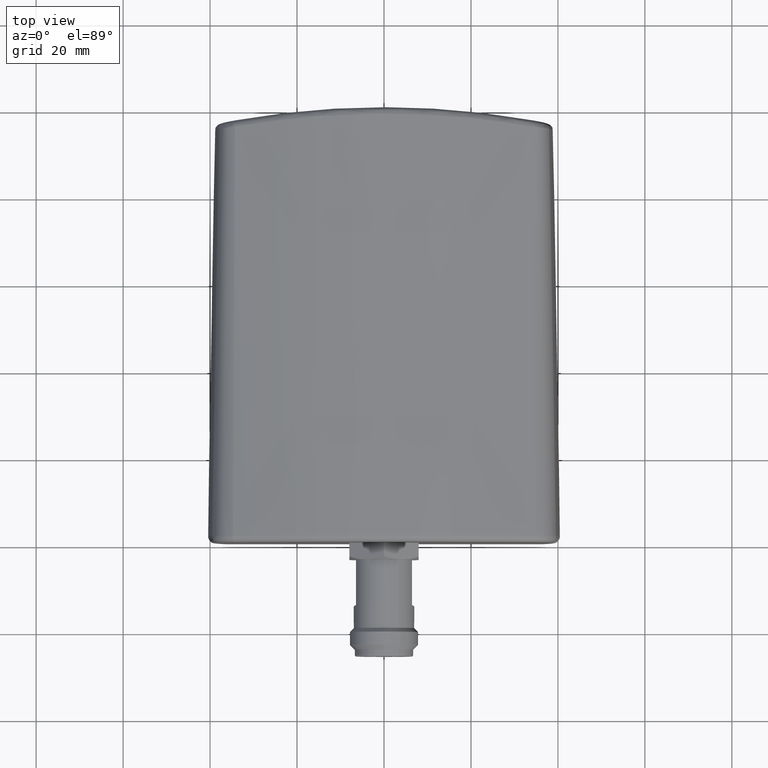
[diagram: clean part render]
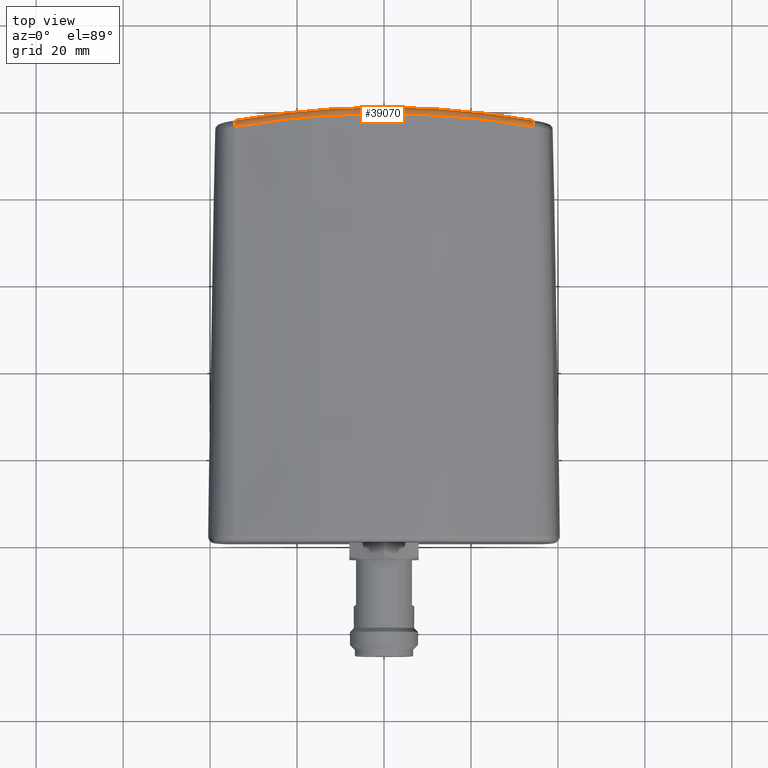
[diagram: same view with one face highlighted and labeled with its STEP entity id]
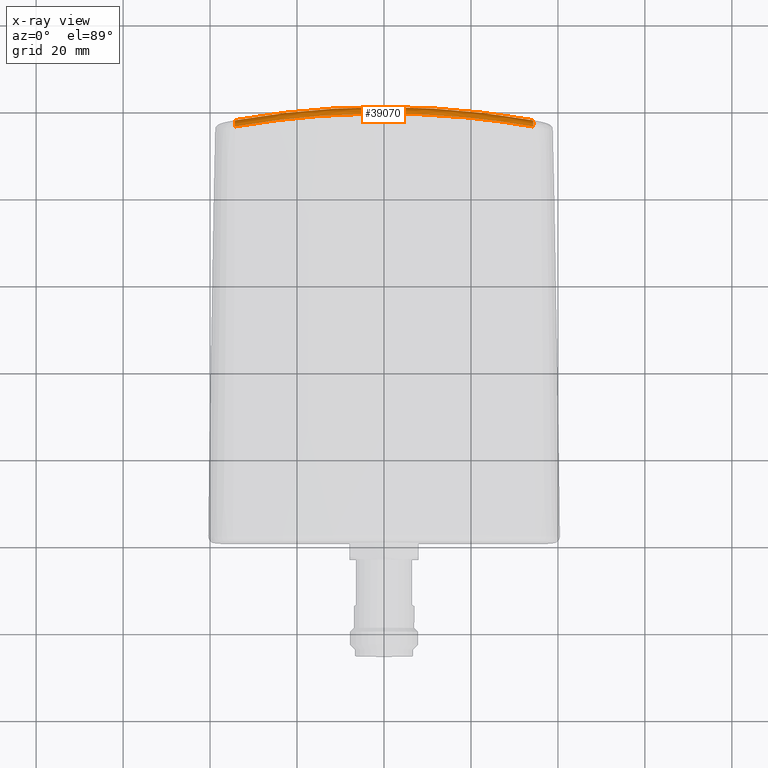
[diagram: x-ray of the same camera — body ghosted, the highlighted face saturated]
A machine part, top view. The second image highlights one B-rep face of the part: STEP entity #39070.
The next image is the same camera in x-ray: the body ghosted, the highlighted face saturated — about 0% of this face is hidden behind the body in this view.
In plain terms, the highlighted face is a freeform B-spline surface patch.
Its self-contained STEP definition (entity closure, byte-faithful):
#15950=CARTESIAN_POINT('',(95.6213285739118,-34.2670629518008,
28.2970659922435));
#15960=VERTEX_POINT('',#15950);
#17270=CARTESIAN_POINT('',(95.6213386402798,34.2670629009296,
28.2970658240596));
#17280=VERTEX_POINT('',#17270);
#17740=CARTESIAN_POINT('',(95.6213285739118,-34.2670629518008,
28.2970659922435));
#17750=CARTESIAN_POINT('',(95.6323923032891,-34.2023015602017,
28.3164515155651));
#17760=CARTESIAN_POINT('',(95.6431231126834,-34.1375354914949,
28.3356298905804));
#17770=CARTESIAN_POINT('',(96.152917839586,-31.1360014853794,
29.2285982923325));
#17780=CARTESIAN_POINT('',(96.5928929996587,-28.1559332832241,
29.9922163244447));
#17790=CARTESIAN_POINT('',(97.9904358270685,-16.9245295156566,
32.40880340826));
#17800=CARTESIAN_POINT('',(98.5248613024818,-8.49530067195654,
33.3128241628869));
#17810=CARTESIAN_POINT('',(98.5274910177388,8.43213096162668,
33.3173042099018));
#17820=CARTESIAN_POINT('',(97.995669069494,16.8621034835572,
32.4177206414532));
#17830=CARTESIAN_POINT('',(96.5988287209731,28.1156591749,
30.0025282991409));
#17840=CARTESIAN_POINT('',(96.1562828474986,31.1161492318504,
29.2345021272602));
#17850=CARTESIAN_POINT('',(95.6431205442519,34.1375254317442,
28.3356308700154));
#17860=CARTESIAN_POINT('',(95.6324021743874,34.2023023260774,
28.3164511039146));
#17870=CARTESIAN_POINT('',(95.6213386402798,34.2670629009296,
28.2970658240596));
#17880=B_SPLINE_CURVE_WITH_KNOTS('',3,(#17740,#17750,#17760,#17770,
#17780,#17790,#17800,#17810,#17820,#17830,#17840,#17850,#17860,#17870),
.UNSPECIFIED.,.F.,.F.,(4,2,2,2,2,2,4),(0.,0.205354024727553,
9.49666785060127,34.7931401177727,60.0899082164268,69.4440688118672,
69.6493925526111),.UNSPECIFIED.);
#17890=EDGE_CURVE('',#15960,#17280,#17880,.T.);
#37140=CARTESIAN_POINT('',(97.0735177280249,-34.0885407476158,
26.861515279655));
#37150=VERTEX_POINT('',#37140);
#37180=CARTESIAN_POINT('',(97.0735177280249,-34.0885407476158,
26.861515279655));
#37190=CARTESIAN_POINT('',(97.0846959125693,-34.0239171497242,
26.8807120518109));
#37200=CARTESIAN_POINT('',(97.0952928137262,-33.9590559532503,
26.8998261270411));
#37210=CARTESIAN_POINT('',(97.6088881777369,-30.9733278256887,
27.7812800508277));
#37220=CARTESIAN_POINT('',(98.0521250615587,-28.0090373904329,
28.5350152818514));
#37230=CARTESIAN_POINT('',(99.4601546507344,-16.8366956868348,
30.9205490681536));
#37240=CARTESIAN_POINT('',(99.9986728050146,-8.45057247485575,
31.8130814704817));
#37250=CARTESIAN_POINT('',(100.001322258873,8.38773220159363,
31.8175039237177));
#37260=CARTESIAN_POINT('',(99.465427574364,16.7745950104958,
30.9293523458537));
#37270=CARTESIAN_POINT('',(98.0581057214153,27.9689717734295,
28.5451954468244));
#37280=CARTESIAN_POINT('',(97.6122792526062,30.9535754271312,
27.7871094827471));
#37290=CARTESIAN_POINT('',(97.0952908964611,33.95904260953,
26.8998282592283));
#37300=CARTESIAN_POINT('',(97.084703111916,34.0238754104534,
26.8807182217547));
#37310=CARTESIAN_POINT('',(97.07352820029,34.0884802050417,
26.86152703681));
#37320=B_SPLINE_CURVE_WITH_KNOTS('',3,(#37180,#37190,#37200,#37210,
#37220,#37230,#37240,#37250,#37260,#37270,#37280,#37290,#37300,#37310),
.UNSPECIFIED.,.F.,.F.,(4,2,2,2,2,2,4),(0.,0.205354024727553,
9.49666785060127,34.7931401177727,60.0899082164268,69.4440688118672,
69.6493925526111),.UNSPECIFIED.);
#37330=CARTESIAN_POINT('',(97.07352820029,34.0884802050417,
26.86152703681));
#37340=VERTEX_POINT('',#37330);
#37350=EDGE_CURVE('',#37150,#37340,#37320,.T.);
#38200=CARTESIAN_POINT('',(95.6213386402799,34.2670629009311,
28.2970658240647));
#38210=CARTESIAN_POINT('',(96.4432797039842,34.3920648061494,
28.2442697202946));
#38220=CARTESIAN_POINT('',(97.0335837249357,34.3194086196509,
27.6609496555165));
#38230=CARTESIAN_POINT('',(97.07352820029,34.0884802050417,
26.86152703681));
#38240=(BOUNDED_CURVE() B_SPLINE_CURVE(3,(#38200,#38210,#38220,#38230),
.UNSPECIFIED.,.F.,.F.) B_SPLINE_CURVE_WITH_KNOTS((4,4),(0.,1.),
.UNSPECIFIED.) CURVE() GEOMETRIC_REPRESENTATION_ITEM() 
RATIONAL_B_SPLINE_CURVE((1.,0.820166665715352,0.820166665715352,1.)) 
REPRESENTATION_ITEM(''));
#38250=EDGE_CURVE('',#17280,#37340,#38240,.T.);
#38380=CARTESIAN_POINT('',(95.6213285739118,-34.2670629518008,
28.2970659922435));
#38390=CARTESIAN_POINT('',(95.6323923032891,-34.2023015602017,
28.3164515155651));
#38400=CARTESIAN_POINT('',(95.6431231126834,-34.1375354914949,
28.3356298905804));
#38410=CARTESIAN_POINT('',(96.152917839586,-31.1360014853794,
29.2285982923325));
#38420=CARTESIAN_POINT('',(96.5928929996587,-28.1559332832241,
29.9922163244447));
#38430=CARTESIAN_POINT('',(97.9904358270685,-16.9245295156566,
32.40880340826));
#38440=CARTESIAN_POINT('',(98.5248613024818,-8.49530067195654,
33.3128241628869));
#38450=CARTESIAN_POINT('',(98.5274910177388,8.43213096162668,
33.3173042099018));
#38460=CARTESIAN_POINT('',(97.995669069494,16.8621034835572,
32.4177206414532));
#38470=CARTESIAN_POINT('',(96.5988287209731,28.1156591749,
30.0025282991409));
#38480=CARTESIAN_POINT('',(96.1562828474986,31.1161492318504,
29.2345021272602));
#38490=CARTESIAN_POINT('',(95.6431205442519,34.1375254317442,
28.3356308700154));
#38500=CARTESIAN_POINT('',(95.6324021743874,34.2023023260774,
28.3164511039146));
#38510=CARTESIAN_POINT('',(95.6213386402798,34.2670629009296,
28.2970658240596));
#38520=CARTESIAN_POINT('',(96.4433689809165,-34.3914919962119,
28.2444413403551));
#38530=CARTESIAN_POINT('',(96.4546432974759,-34.326287337201,
28.2640430412846));
#38540=CARTESIAN_POINT('',(96.465576914908,-34.2609955526159,
28.2836155152455));
#38550=CARTESIAN_POINT('',(96.982715956335,-31.2519173887651,
29.1823434042826));
#38560=CARTESIAN_POINT('',(97.4291199437597,-28.2636784498166,
29.9510881014032));
#38570=CARTESIAN_POINT('',(98.8478425151963,-16.9970087225032,
32.3852812303642));
#38580=CARTESIAN_POINT('',(99.3913181932417,-8.5282784276809,
33.297690323763));
#38590=CARTESIAN_POINT('',(99.393989569213,8.46484445715067,
33.302206718677));
#38600=CARTESIAN_POINT('',(98.8531601553345,16.9343436681771,
32.3942733869311));
#38610=CARTESIAN_POINT('',(97.4351460219132,28.223274070481,
29.9614757226498));
#38620=CARTESIAN_POINT('',(96.9861332088121,31.2319961774056,
29.18829197766));
#38630=CARTESIAN_POINT('',(96.4655776623265,34.2609677801899,
28.28362227277));
#38640=CARTESIAN_POINT('',(96.4545927456113,34.3266371306376,
28.2639385242287));
#38650=CARTESIAN_POINT('',(96.4432797039827,34.3920648061476,
28.2442697202897));
#38660=CARTESIAN_POINT('',(97.0335592023591,-34.3195499678251,
27.6609153223325));
#38670=CARTESIAN_POINT('',(97.0449660410369,-34.2540799910422,
27.6805015729599));
#38680=CARTESIAN_POINT('',(97.0559194101401,-34.188193978942,
27.7000285593271));
#38690=CARTESIAN_POINT('',(97.5759910663856,-31.1853701719575,
28.5926964392486));
#38700=CARTESIAN_POINT('',(98.0249098501721,-28.2035669578993,
29.3561726192605));
#38710=CARTESIAN_POINT('',(99.4518307699194,-16.961157069143,
31.7737156583409));
#38720=CARTESIAN_POINT('',(99.998664604182,-8.50951362093059,
32.6797750849298));
#38730=CARTESIAN_POINT('',(100.001351835556,8.44621543179987,
32.6842596704488));
#38740=CARTESIAN_POINT('',(99.4571803985601,16.8986249766299,
31.7826452861239));
#38750=CARTESIAN_POINT('',(98.0309711105516,28.1632449360076,
29.3664898308489));
#38760=CARTESIAN_POINT('',(97.5794287859558,31.1654868314711,
28.5986055748378));
#38770=CARTESIAN_POINT('',(97.0559197696858,34.1881694969927,
27.7000342015547));
#38780=CARTESIAN_POINT('',(97.0449827216901,34.2539836082711,
27.6805224506394));
#38790=CARTESIAN_POINT('',(97.0335837249357,34.3194086196505,
27.6609496555151));
#38800=CARTESIAN_POINT('',(97.0735177280249,-34.0885407476158,
26.861515279655));
#38810=CARTESIAN_POINT('',(97.0846959125693,-34.0239171497242,
26.8807120518109));
#38820=CARTESIAN_POINT('',(97.0952928137262,-33.9590559532503,
26.8998261270411));
#38830=CARTESIAN_POINT('',(97.6088881777369,-30.9733278256887,
27.7812800508277));
#38840=CARTESIAN_POINT('',(98.0521250615587,-28.0090373904329,
28.5350152818514));
#38850=CARTESIAN_POINT('',(99.4601546507344,-16.8366956868348,
30.9205490681536));
#38860=CARTESIAN_POINT('',(99.9986728050146,-8.45057247485575,
31.8130814704817));
#38870=CARTESIAN_POINT('',(100.001322258873,8.38773220159363,
31.8175039237177));
#38880=CARTESIAN_POINT('',(99.465427574364,16.7745950104958,
30.9293523458537));
#38890=CARTESIAN_POINT('',(98.0581057214153,27.9689717734295,
28.5451954468244));
#38900=CARTESIAN_POINT('',(97.6122792526062,30.9535754271312,
27.7871094827471));
#38910=CARTESIAN_POINT('',(97.0952908964611,33.95904260953,
26.8998282592283));
#38920=CARTESIAN_POINT('',(97.084703111916,34.0238754104534,
26.8807182217547));
#38930=CARTESIAN_POINT('',(97.07352820029,34.0884802050417,
26.86152703681));
#38940=(BOUNDED_SURFACE() B_SPLINE_SURFACE(3,3,((#38380,#38520,#38660,
#38800),(#38390,#38530,#38670,#38810),(#38400,#38540,#38680,#38820),(
#38410,#38550,#38690,#38830),(#38420,#38560,#38700,#38840),(#38430,
#38570,#38710,#38850),(#38440,#38580,#38720,#38860),(#38450,#38590,
#38730,#38870),(#38460,#38600,#38740,#38880),(#38470,#38610,#38750,
#38890),(#38480,#38620,#38760,#38900),(#38490,#38630,#38770,#38910),(
#38500,#38640,#38780,#38920),(#38510,#38650,#38790,#38930)),
.UNSPECIFIED.,.F.,.F.,.F.) B_SPLINE_SURFACE_WITH_KNOTS((4,2,2,2,2,2,4),(
4,4),(0.,0.205354024727553,9.49666785060127,34.7931401177727,
60.0899082164268,69.4440688118672,69.6493925526111),(0.,1.),
.UNSPECIFIED.) GEOMETRIC_REPRESENTATION_ITEM() RATIONAL_B_SPLINE_SURFACE
(((1.,0.820166392639051,0.820166392639051,1.),(1.,0.820121053425747,
0.820121053425747,1.),(1.,0.82000840778769,0.82000840778769,1.),(1.,
0.818078866713324,0.818078866713324,1.),(1.,0.816428646793294,
0.816428646793294,1.),(1.,0.81110658024861,0.81110658024861,1.),(1.,
0.808958258705315,0.808958258705315,1.),(1.,0.808947896091783,
0.808947896091783,1.),(1.,0.811085877738378,0.811085877738378,1.),(1.,
0.816405626317599,0.816405626317599,1.),(1.,0.818065446211974,
0.818065446211974,1.),(1.,0.820008173811531,0.820008173811531,1.),(1.,
0.820121285174092,0.820121285174092,1.),(1.,0.820166665715352,
0.820166665715352,1.))) REPRESENTATION_ITEM('') SURFACE());
#38950=ORIENTED_EDGE('',*,*,#38250,.F.);
#38960=ORIENTED_EDGE('',*,*,#37350,.T.);
#38970=CARTESIAN_POINT('',(95.6213285739119,-34.2670629518039,
28.2970659922538));
#38980=CARTESIAN_POINT('',(96.4433689809196,-34.3914919962155,
28.2444413403652));
#38990=CARTESIAN_POINT('',(97.033559202359,-34.3195499678259,
27.6609153223354));
#39000=CARTESIAN_POINT('',(97.0735177280249,-34.0885407476158,
26.861515279655));
#39010=(BOUNDED_CURVE() B_SPLINE_CURVE(3,(#38970,#38980,#38990,#39000),
.UNSPECIFIED.,.F.,.F.) B_SPLINE_CURVE_WITH_KNOTS((4,4),(0.,1.),
.UNSPECIFIED.) CURVE() GEOMETRIC_REPRESENTATION_ITEM() 
RATIONAL_B_SPLINE_CURVE((1.,0.820166392639055,0.820166392639055,1.)) 
REPRESENTATION_ITEM(''));
#39020=EDGE_CURVE('',#15960,#37150,#39010,.T.);
#39030=ORIENTED_EDGE('',*,*,#39020,.T.);
#39040=ORIENTED_EDGE('',*,*,#17890,.F.);
#39050=EDGE_LOOP('',(#39040,#39030,#38960,#38950));
#39060=FACE_OUTER_BOUND('',#39050,.T.);
#39070=ADVANCED_FACE('',(#39060),#38940,.F.);